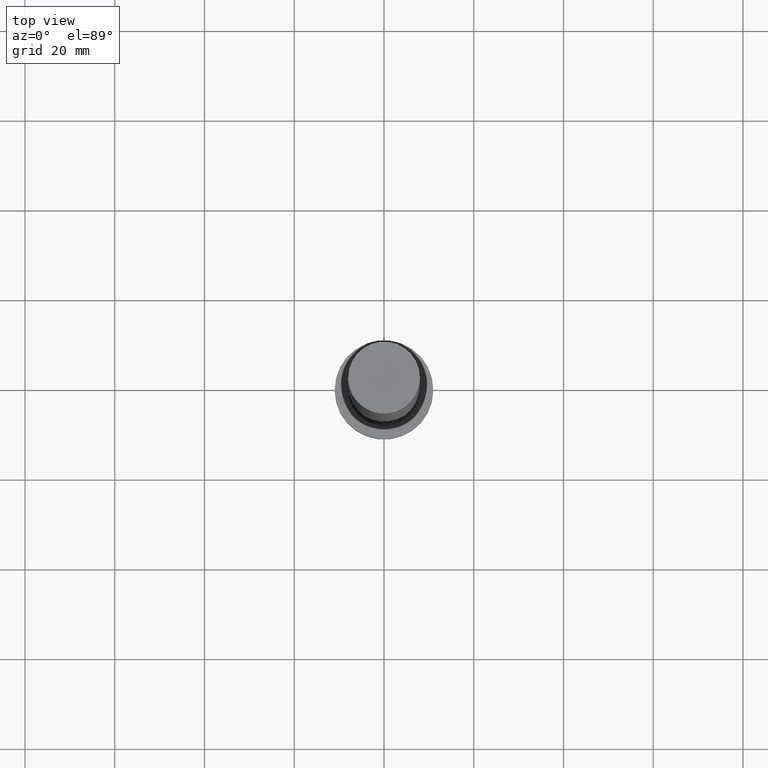
[diagram: clean part render]
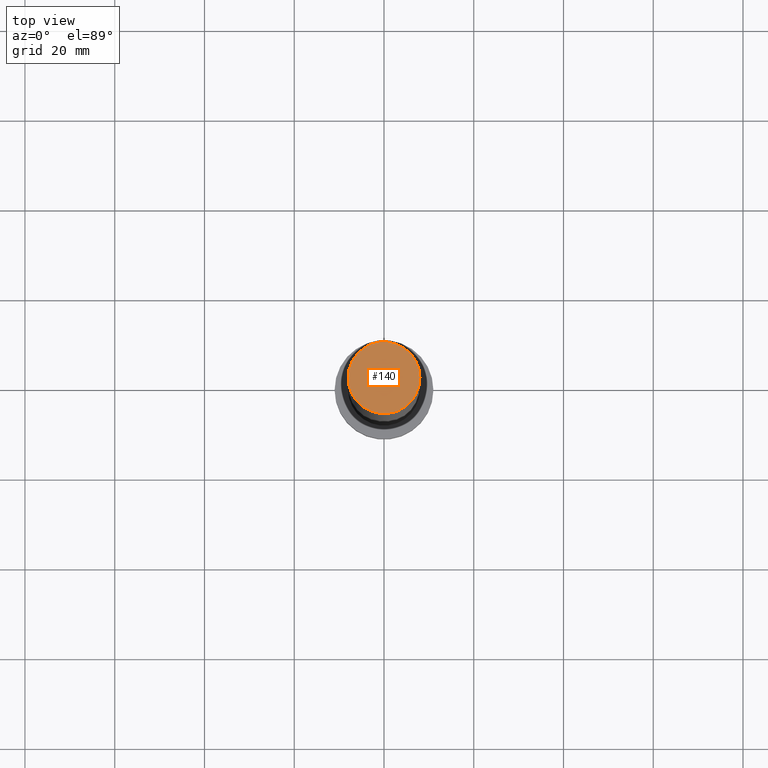
[diagram: same view with one face highlighted and labeled with its STEP entity id]
A machine part, top view. The second image highlights one B-rep face of the part: STEP entity #140.
In plain terms, the highlighted planar face has unit normal (0, 0, 1).
Its self-contained STEP definition (entity closure, byte-faithful):
#24 = CARTESIAN_POINT ( 'NONE',  ( 8.000000000000000000, 9.797174393178825657E-16, 160.0000000000000000 ) ) ;
#47 = DIRECTION ( 'NONE',  ( 0.000000000000000000, 0.000000000000000000, 1.000000000000000000 ) ) ;
#53 = VERTEX_POINT ( 'NONE', #24 ) ;
#55 = FACE_OUTER_BOUND ( 'NONE', #100, .T. ) ;
#65 = AXIS2_PLACEMENT_3D ( 'NONE', #97, #47, #109 ) ;
#70 = CARTESIAN_POINT ( 'NONE',  ( -8.000000000000000000, 0.000000000000000000, 160.0000000000000000 ) ) ;
#86 = CARTESIAN_POINT ( 'NONE',  ( 0.000000000000000000, 0.000000000000000000, 160.0000000000000000 ) ) ;
#97 = CARTESIAN_POINT ( 'NONE',  ( 0.000000000000000000, 0.000000000000000000, 160.0000000000000000 ) ) ;
#100 = EDGE_LOOP ( 'NONE', ( #200, #138 ) ) ;
#103 = DIRECTION ( 'NONE',  ( 0.000000000000000000, 0.000000000000000000, 1.000000000000000000 ) ) ;
#105 = DIRECTION ( 'NONE',  ( 0.000000000000000000, 0.000000000000000000, 1.000000000000000000 ) ) ;
#108 = AXIS2_PLACEMENT_3D ( 'NONE', #86, #105, #179 ) ;
#109 = DIRECTION ( 'NONE',  ( 1.000000000000000000, 0.000000000000000000, 0.000000000000000000 ) ) ;
#114 = CIRCLE ( 'NONE', #173, 8.000000000000000000 ) ;
#120 = EDGE_CURVE ( 'NONE', #177, #53, #114, .T. ) ;
#122 = CARTESIAN_POINT ( 'NONE',  ( 0.000000000000000000, 0.000000000000000000, 160.0000000000000000 ) ) ;
#130 = CIRCLE ( 'NONE', #65, 8.000000000000000000 ) ;
#138 = ORIENTED_EDGE ( 'NONE', *, *, #166, .T. ) ;
#140 = ADVANCED_FACE ( 'NONE', ( #55 ), #201, .T. ) ;
#166 = EDGE_CURVE ( 'NONE', #53, #177, #130, .T. ) ;
#173 = AXIS2_PLACEMENT_3D ( 'NONE', #122, #103, #182 ) ;
#177 = VERTEX_POINT ( 'NONE', #70 ) ;
#179 = DIRECTION ( 'NONE',  ( 1.000000000000000000, 0.000000000000000000, -0.000000000000000000 ) ) ;
#182 = DIRECTION ( 'NONE',  ( 1.000000000000000000, 0.000000000000000000, 0.000000000000000000 ) ) ;
#200 = ORIENTED_EDGE ( 'NONE', *, *, #120, .T. ) ;
#201 = PLANE ( 'NONE',  #108 ) ;